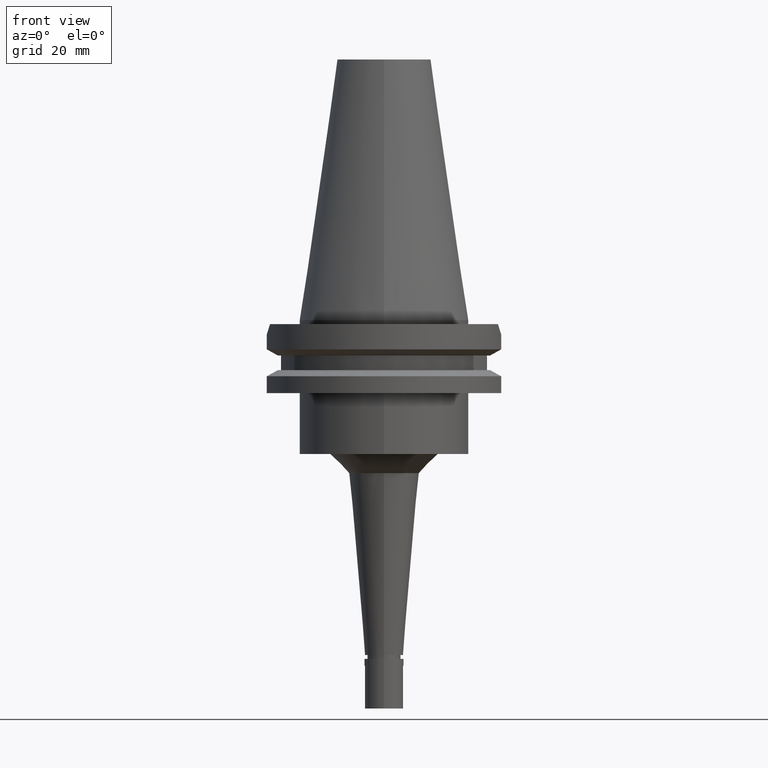
[diagram: clean part render]
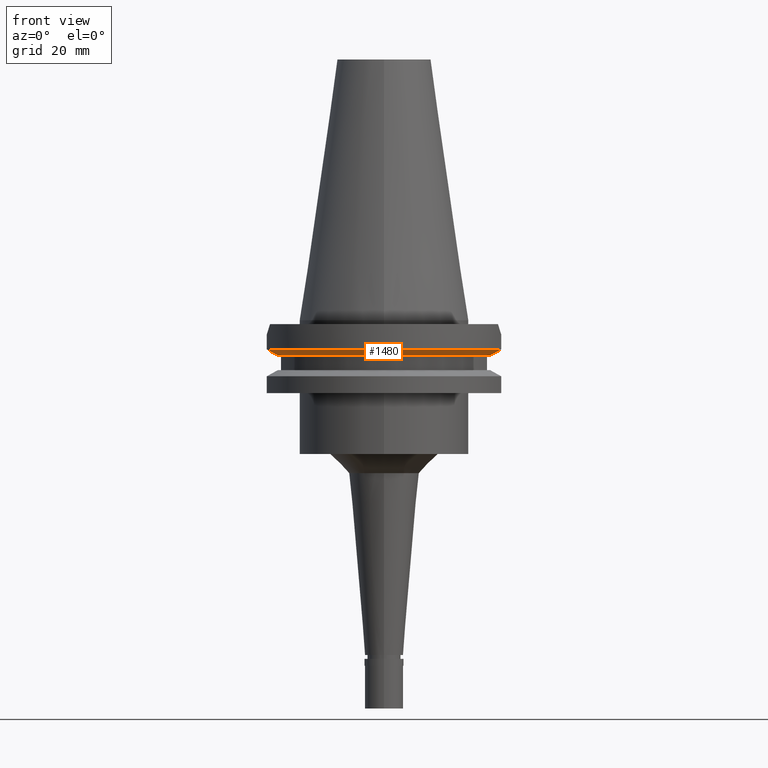
[diagram: same view with one face highlighted and labeled with its STEP entity id]
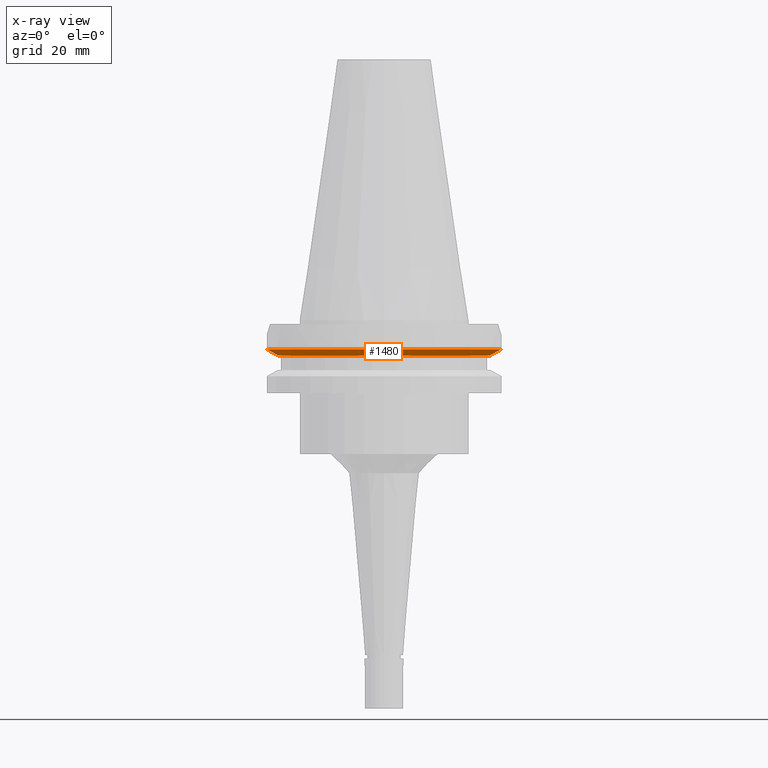
[diagram: x-ray of the same camera — body ghosted, the highlighted face saturated]
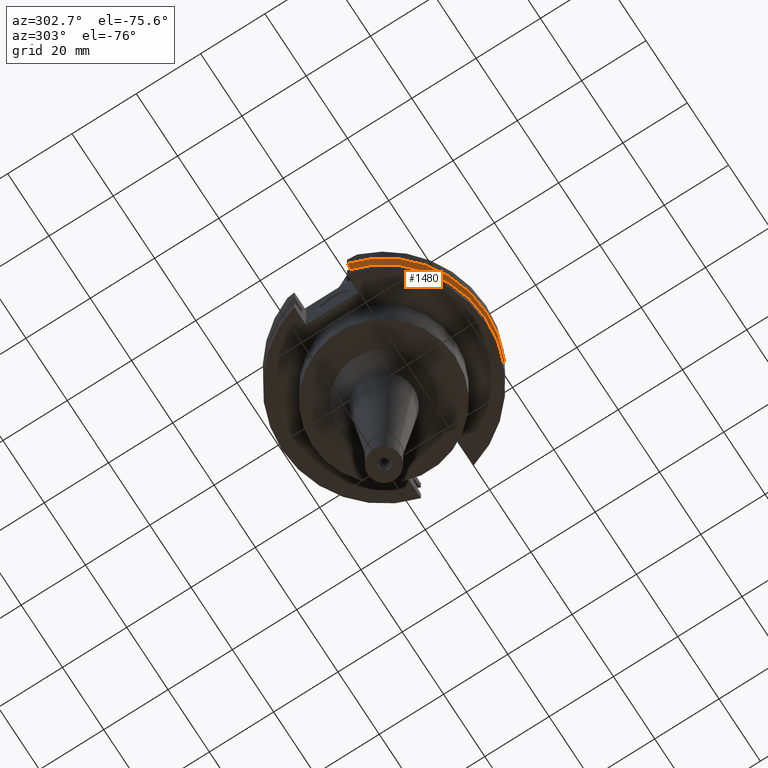
[diagram: same view with one face highlighted and labeled with its STEP entity id]
A machine part, front view. The second image highlights one B-rep face of the part: STEP entity #1480.
The next image is the same camera in x-ray: the body ghosted, the highlighted face saturated — about 0% of this face is hidden behind the body in this view.
A second angle (auxiliary view) of the same face is appended — the face is thin or edge-on in the first view.
In plain terms, the highlighted conical surface has half-angle 60 deg.
Its self-contained STEP definition (entity closure, byte-faithful):
#194 = CARTESIAN_POINT ( 'NONE',  ( -27.78617704606999794, -8.189999360282000040, -9.207500000000999663 ) ) ;
#425 = AXIS2_PLACEMENT_3D ( 'NONE', #1785, #3010, #1274 ) ;
#630 = AXIS2_PLACEMENT_3D ( 'NONE', #1831, #1866, #1372 ) ;
#806 = EDGE_CURVE ( 'NONE', #2088, #1641, #2225, .T. ) ;
#900 = CARTESIAN_POINT ( 'NONE',  ( -30.67550165945999652, -8.189999874276001179, -7.601334354446000141 ) ) ;
#970 = EDGE_CURVE ( 'NONE', #1465, #1641, #2042, .T. ) ;
#1116 = VERTEX_POINT ( 'NONE', #2078 ) ;
#1203 = DIRECTION ( 'NONE',  ( 0.0000000000000000000, 1.000000000000000000, 0.0000000000000000000 ) ) ;
#1215 = DIRECTION ( 'NONE',  ( 0.0000000000000000000, 0.0000000000000000000, 1.000000000000000000 ) ) ;
#1236 = EDGE_CURVE ( 'NONE', #2088, #1116, #2626, .T. ) ;
#1271 = CONICAL_SURFACE ( 'NONE', #1782, 30.35901877526999826, 1.047197551196400456 ) ;
#1274 = DIRECTION ( 'NONE',  ( -0.9592008904639479638, -0.2827253998726845241, 0.0000000000000000000 ) ) ;
#1325 = CARTESIAN_POINT ( 'NONE',  ( 30.67550146397999811, -8.190000606419999940, -7.601327811602999418 ) ) ;
#1372 = DIRECTION ( 'NONE',  ( -0.9661575315241073270, -0.2579527559055020958, 0.0000000000000000000 ) ) ;
#1437 = CARTESIAN_POINT ( 'NONE',  ( 29.66936146265214091, -8.190001212402243880, -8.162569410814178639 ) ) ;
#1465 = VERTEX_POINT ( 'NONE', #3188 ) ;
#1480 = ADVANCED_FACE ( 'NONE', ( #2210 ), #1271, .T. ) ;
#1483 = ORIENTED_EDGE ( 'NONE', *, *, #806, .F. ) ;
#1611 = EDGE_CURVE ( 'NONE', #1116, #1465, #2062, .T. ) ;
#1641 = VERTEX_POINT ( 'NONE', #1325 ) ;
#1655 = CARTESIAN_POINT ( 'NONE',  ( 30.67550146397999811, -8.190000606419999940, -7.601327811602999418 ) ) ;
#1674 = ORIENTED_EDGE ( 'NONE', *, *, #1611, .T. ) ;
#1782 = AXIS2_PLACEMENT_3D ( 'NONE', #2446, #1215, #1203 ) ;
#1785 = CARTESIAN_POINT ( 'NONE',  ( 0.0000000000000000000, 1.121722380078999823E-14, -9.207500000002999840 ) ) ;
#1831 = CARTESIAN_POINT ( 'NONE',  ( 0.0000000000000000000, 1.121722380078999823E-14, -7.601333230925999551 ) ) ;
#1866 = DIRECTION ( 'NONE',  ( 0.0000000000000000000, 0.0000000000000000000, 1.000000000000000000 ) ) ;
#2021 = EDGE_LOOP ( 'NONE', ( #3006, #1483, #2941, #1674 ) ) ;
#2042 = B_SPLINE_CURVE_WITH_KNOTS ( 'NONE', 3,
 ( #2924, #2903, #1437, #1655 ),
 .UNSPECIFIED., .F., .F.,
 ( 4, 4 ),
 ( 0.0000000000000000000, 1.000000000000000000 ),
 .UNSPECIFIED. ) ;
#2062 = CIRCLE ( 'NONE', #425, 28.96803755052999918 ) ;
#2078 = CARTESIAN_POINT ( 'NONE',  ( -27.78617704606999794, -8.189999360282000040, -9.207500000000999663 ) ) ;
#2088 = VERTEX_POINT ( 'NONE', #2783 ) ;
#2210 = FACE_OUTER_BOUND ( 'NONE', #2021, .T. ) ;
#2225 = CIRCLE ( 'NONE', #630, 31.74999999999998579 ) ;
#2446 = CARTESIAN_POINT ( 'NONE',  ( 0.0000000000000000000, 1.121722380078999823E-14, -8.404416615464000984 ) ) ;
#2602 = CARTESIAN_POINT ( 'NONE',  ( -29.66936067482066619, -8.189999748645091060, -8.162570071847900621 ) ) ;
#2626 = B_SPLINE_CURVE_WITH_KNOTS ( 'NONE', 3,
 ( #900, #2602, #2851, #194 ),
 .UNSPECIFIED., .F., .F.,
 ( 4, 4 ),
 ( 0.0000000000000000000, 1.000000000000000000 ),
 .UNSPECIFIED. ) ;
#2783 = CARTESIAN_POINT ( 'NONE',  ( -30.67550165945999652, -8.189999874276001179, -7.601334354446000141 ) ) ;
#2851 = CARTESIAN_POINT ( 'NONE',  ( -28.70626004183131386, -8.189998719150811013, -8.697957593730484049 ) ) ;
#2903 = CARTESIAN_POINT ( 'NONE',  ( 28.70625673565875857, -8.190000382248479482, -8.697959175666198917 ) ) ;
#2924 = CARTESIAN_POINT ( 'NONE',  ( 27.78616453869999958, -8.190000190906999933, -9.207500000000999663 ) ) ;
#2941 = ORIENTED_EDGE ( 'NONE', *, *, #1236, .T. ) ;
#3006 = ORIENTED_EDGE ( 'NONE', *, *, #970, .T. ) ;
#3010 = DIRECTION ( 'NONE',  ( 0.0000000000000000000, 0.0000000000000000000, 1.000000000000000000 ) ) ;
#3188 = CARTESIAN_POINT ( 'NONE',  ( 27.78616453869999958, -8.190000190906999933, -9.207500000000999663 ) ) ;